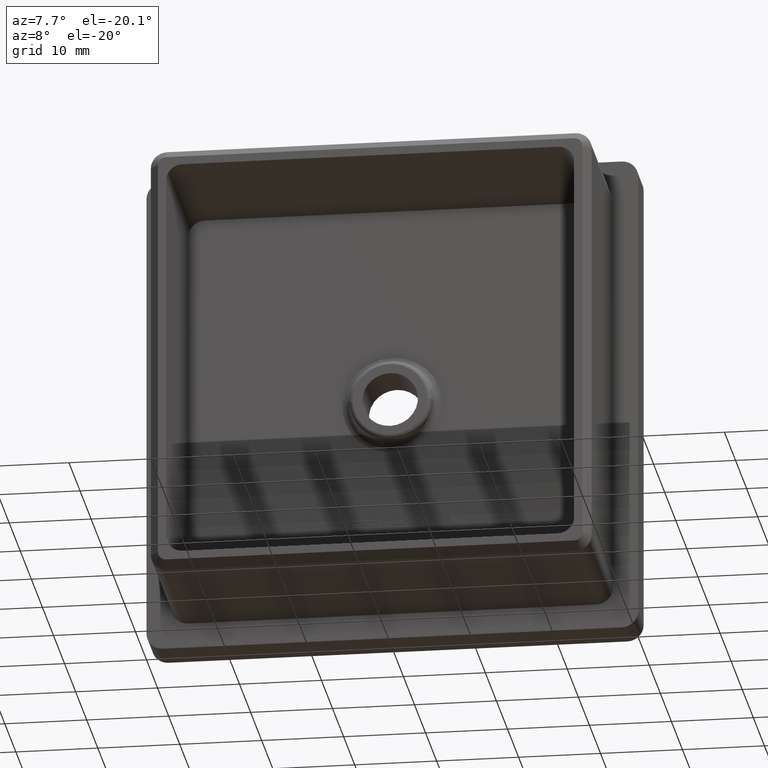
[diagram: clean part render]
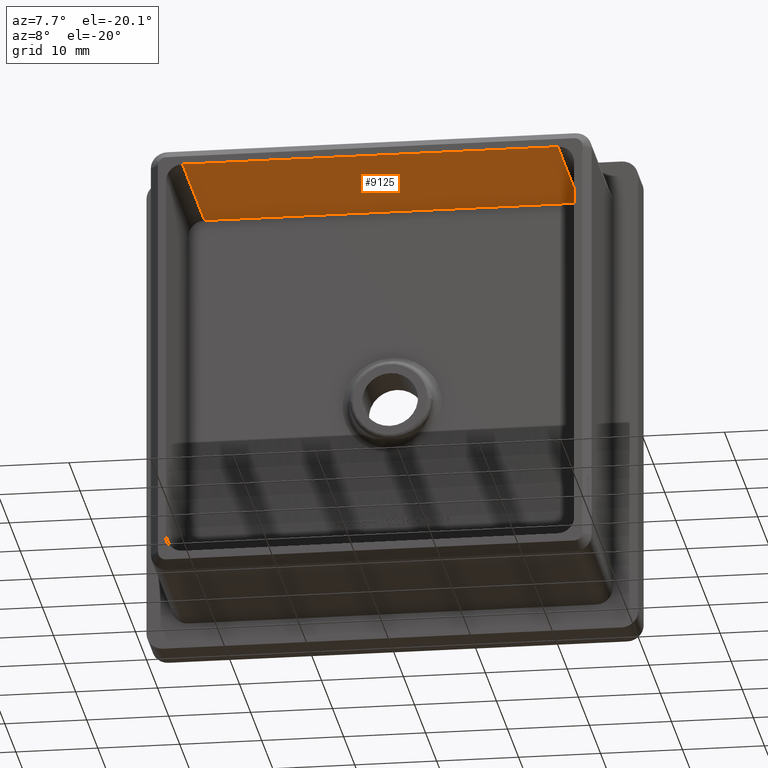
[diagram: same view with one face highlighted and labeled with its STEP entity id]
A machine part, auxiliary view. The second image highlights one B-rep face of the part: STEP entity #9125.
In plain terms, the highlighted planar face has unit normal (0, 0, -1).
Its self-contained STEP definition (entity closure, byte-faithful):
#250 = VECTOR ( 'NONE', #14779, 1000.000000000000000 ) ;
#1248 = PLANE ( 'NONE',  #16068 ) ;
#1795 = EDGE_LOOP ( 'NONE', ( #2930, #7049, #14872, #8627 ) ) ;
#2293 = DIRECTION ( 'NONE',  ( 0.0000000000000000000, -1.000000000000000000, -0.0000000000000000000 ) ) ;
#2930 = ORIENTED_EDGE ( 'NONE', *, *, #14686, .F. ) ;
#4682 = LINE ( 'NONE', #13323, #250 ) ;
#4877 = LINE ( 'NONE', #15151, #5803 ) ;
#5290 = CARTESIAN_POINT ( 'NONE',  ( -22.90000000000000200, 0.0000000000000000000, 24.90000000000000200 ) ) ;
#5408 = VECTOR ( 'NONE', #16829, 1000.000000000000000 ) ;
#5803 = VECTOR ( 'NONE', #7536, 1000.000000000000000 ) ;
#7049 = ORIENTED_EDGE ( 'NONE', *, *, #14922, .T. ) ;
#7290 = VERTEX_POINT ( 'NONE', #5290 ) ;
#7382 = VERTEX_POINT ( 'NONE', #15983 ) ;
#7536 = DIRECTION ( 'NONE',  ( -0.0000000000000000000, 1.000000000000000000, 0.0000000000000000000 ) ) ;
#7914 = LINE ( 'NONE', #18224, #9517 ) ;
#7923 = CARTESIAN_POINT ( 'NONE',  ( -24.90000000000000200, -20.00000000000000000, 24.90000000000000200 ) ) ;
#8627 = ORIENTED_EDGE ( 'NONE', *, *, #16989, .T. ) ;
#8816 = DIRECTION ( 'NONE',  ( 0.0000000000000000000, 0.0000000000000000000, -1.000000000000000000 ) ) ;
#9125 = ADVANCED_FACE ( 'NONE', ( #17676 ), #1248, .T. ) ;
#9306 = LINE ( 'NONE', #7923, #5408 ) ;
#9517 = VECTOR ( 'NONE', #2293, 1000.000000000000000 ) ;
#9604 = VERTEX_POINT ( 'NONE', #10593 ) ;
#10593 = CARTESIAN_POINT ( 'NONE',  ( -22.90000000000000200, -20.00000000000000000, 24.90000000000000200 ) ) ;
#12300 = VERTEX_POINT ( 'NONE', #13816 ) ;
#13323 = CARTESIAN_POINT ( 'NONE',  ( -24.90000000000000200, 0.0000000000000000000, 24.90000000000000200 ) ) ;
#13639 = EDGE_CURVE ( 'NONE', #12300, #9604, #9306, .T. ) ;
#13816 = CARTESIAN_POINT ( 'NONE',  ( 22.89999999999999500, -20.00000000000000000, 24.90000000000000200 ) ) ;
#14636 = CARTESIAN_POINT ( 'NONE',  ( -24.90000000000000200, -20.00000000000000000, 24.90000000000000200 ) ) ;
#14686 = EDGE_CURVE ( 'NONE', #7382, #7290, #4682, .T. ) ;
#14779 = DIRECTION ( 'NONE',  ( -1.000000000000000000, -0.0000000000000000000, -0.0000000000000000000 ) ) ;
#14872 = ORIENTED_EDGE ( 'NONE', *, *, #13639, .T. ) ;
#14922 = EDGE_CURVE ( 'NONE', #7382, #12300, #7914, .T. ) ;
#15151 = CARTESIAN_POINT ( 'NONE',  ( -22.90000000000000200, 0.0000000000000000000, 24.90000000000000200 ) ) ;
#15983 = CARTESIAN_POINT ( 'NONE',  ( 22.89999999999999500, 0.0000000000000000000, 24.90000000000000200 ) ) ;
#16068 = AXIS2_PLACEMENT_3D ( 'NONE', #14636, #8816, #17603 ) ;
#16829 = DIRECTION ( 'NONE',  ( -1.000000000000000000, -0.0000000000000000000, -0.0000000000000000000 ) ) ;
#16989 = EDGE_CURVE ( 'NONE', #9604, #7290, #4877, .T. ) ;
#17603 = DIRECTION ( 'NONE',  ( -1.000000000000000000, 0.0000000000000000000, -0.0000000000000000000 ) ) ;
#17676 = FACE_OUTER_BOUND ( 'NONE', #1795, .T. ) ;
#18224 = CARTESIAN_POINT ( 'NONE',  ( 22.89999999999999500, -20.00000000000000000, 24.90000000000000200 ) ) ;